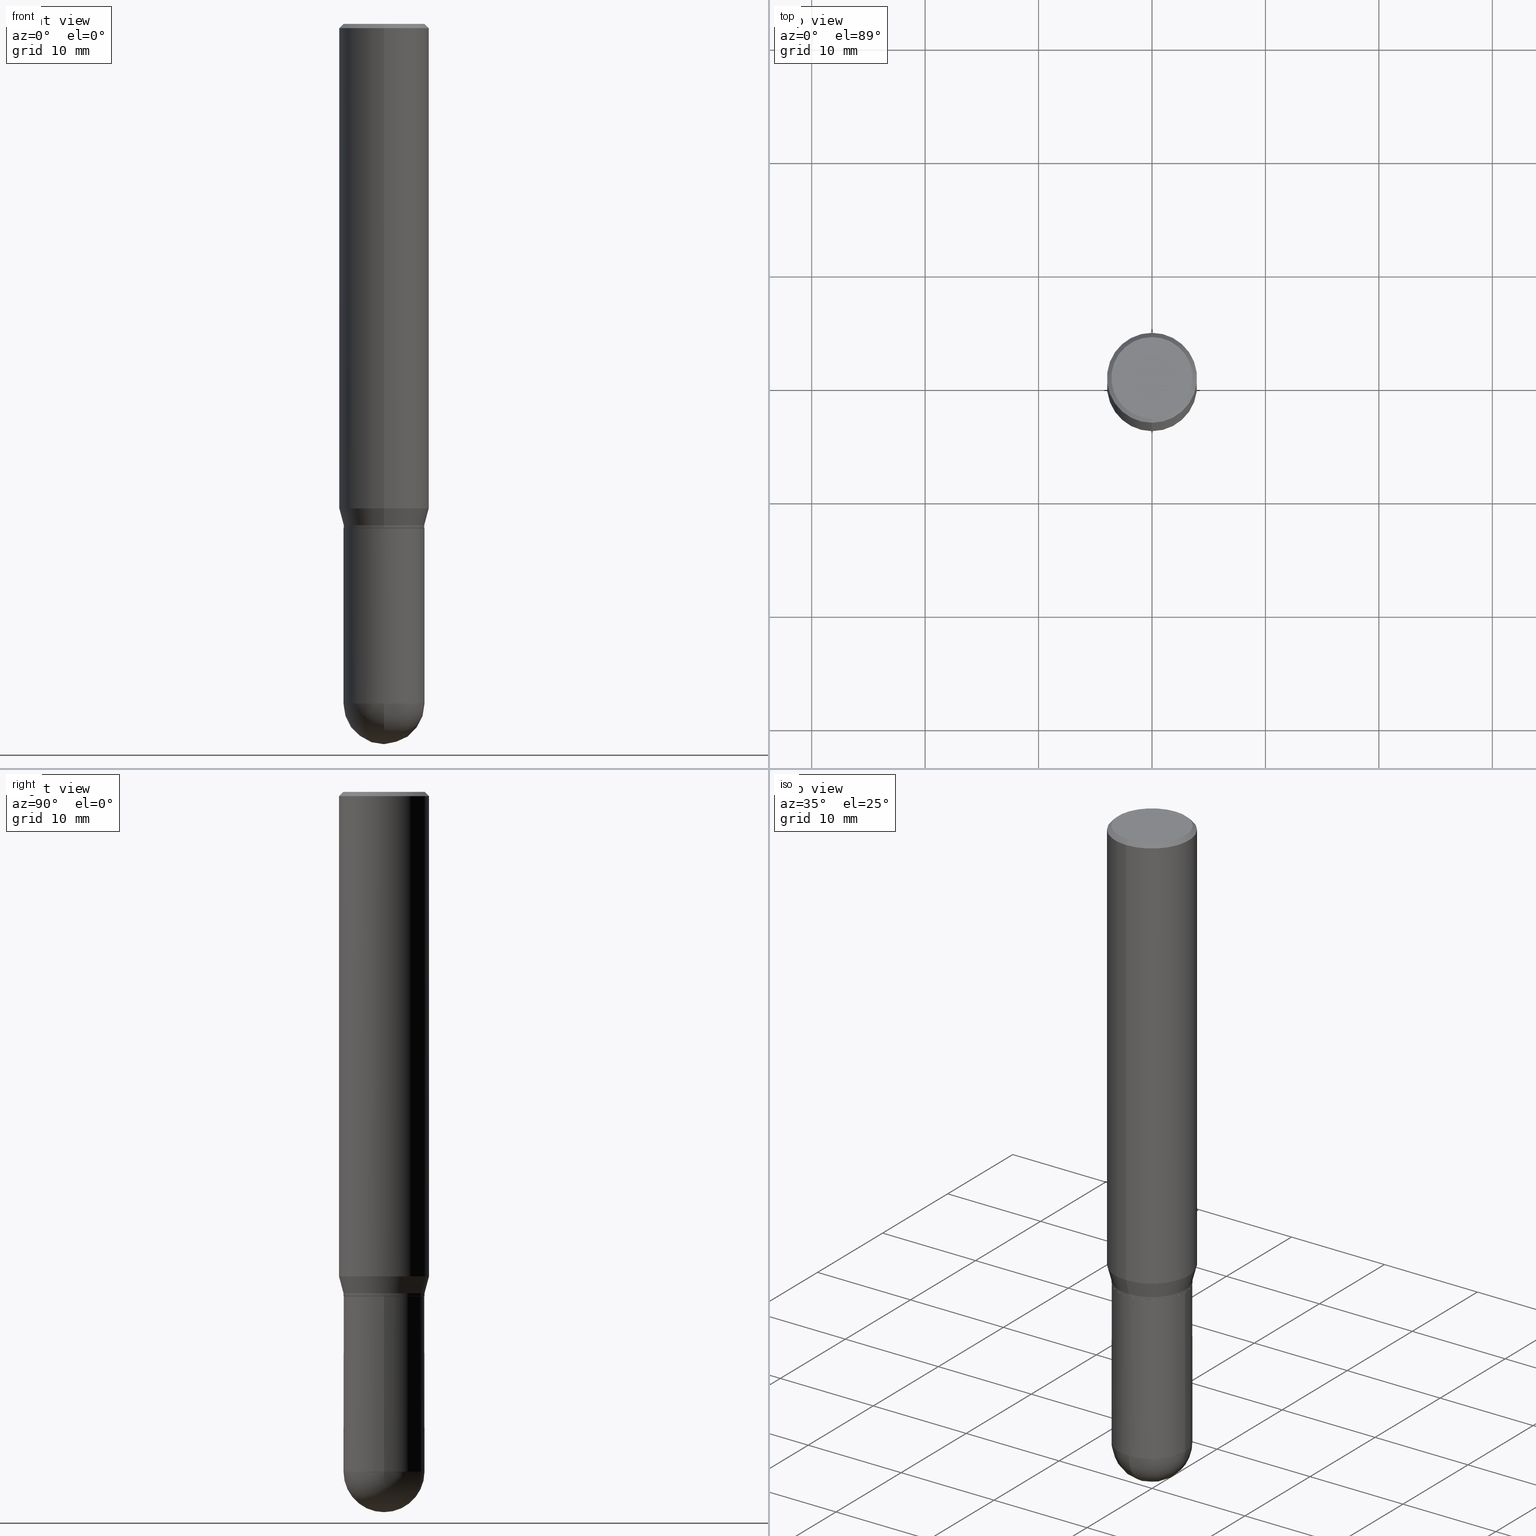
[diagram: canonical four-view strip — front | top / right | iso, engineering-drawing reading convention]
A machine part, canonical four-view strip (front | top / right | iso — engineering-drawing reading convention). The complete STEP part file that produces these views, byte-faithful:
ISO-10303-21;
HEADER;
FILE_DESCRIPTION (( 'STEP AP203' ),
    '1' );
FILE_NAME ('31147.STEP',
    '2024-03-08T15:55:35',
    ( '' ),
    ( '' ),
    'SwSTEP 2.0',
    'SolidWorks 2023',
    '' );
FILE_SCHEMA (( 'CONFIG_CONTROL_DESIGN' ));
ENDSEC;

DATA;
#1 = ORIENTED_EDGE ( 'NONE', *, *, #16, .F. ) ;
#2 = DIRECTION ( 'NONE',  ( -6.982962677686265922E-15, -1.000000000000000000, 3.899854380677035588E-15 ) ) ;
#3 = CARTESIAN_POINT ( 'NONE',  ( 4.254902007838144106E-29, -6.075483581522130008E-15, -1.739999999999999991 ) ) ;
#4 = AXIS2_PLACEMENT_3D ( 'NONE', #144, #352, #77 ) ;
#5 = ORIENTED_EDGE ( 'NONE', *, *, #331, .T. ) ;
#6 = CARTESIAN_POINT ( 'NONE',  ( 4.279355467653306195E-29, -6.110400153829729604E-15, -1.750000000000000222 ) ) ;
#7 = EDGE_CURVE ( 'NONE', #475, #375, #335, .T. ) ;
#8 = CARTESIAN_POINT ( 'NONE',  ( -0.1406000000000000028, -6.174923620442310269E-15, -1.750000000000000222 ) ) ;
#9 = ORIENTED_EDGE ( 'NONE', *, *, #46, .T. ) ;
#10 = ORGANIZATION ( 'UNSPECIFIED', 'UNSPECIFIED', '' ) ;
#11 = FACE_OUTER_BOUND ( 'NONE', #131, .T. ) ;
#12 = FACE_OUTER_BOUND ( 'NONE', #251, .T. ) ;
#13 = VERTEX_POINT ( 'NONE', #300 ) ;
#14 = LINE ( 'NONE', #407, #226 ) ;
#15 = AXIS2_PLACEMENT_3D ( 'NONE', #6, #125, #333 ) ;
#16 = EDGE_CURVE ( 'NONE', #367, #378, #148, .T. ) ;
#17 = ORIENTED_EDGE ( 'NONE', *, *, #200, .F. ) ;
#18 = EDGE_LOOP ( 'NONE', ( #323, #5 ) ) ;
#19 = ORIENTED_EDGE ( 'NONE', *, *, #212, .F. ) ;
#20 = VECTOR ( 'NONE', #425, 39.37007874015748143 ) ;
#21 = VECTOR ( 'NONE', #397, 39.37007874015748143 ) ;
#22 = ORIENTED_EDGE ( 'NONE', *, *, #263, .F. ) ;
#23 = CYLINDRICAL_SURFACE ( 'NONE', #4, 0.1405999999999999195 ) ;
#24 = EDGE_CURVE ( 'NONE', #142, #478, #311, .T. ) ;
#25 = COORDINATED_UNIVERSAL_TIME_OFFSET ( 5, 0, .BEHIND. ) ;
#26 = AXIS2_PLACEMENT_3D ( 'NONE', #449, #99, #304 ) ;
#27 = CC_DESIGN_DATE_AND_TIME_ASSIGNMENT ( #147, #453, ( #241 ) ) ;
#28 = CARTESIAN_POINT ( 'NONE',  ( -1.091087918388437956E-15, -0.1562500000000058842, -1.681593404861546404 ) ) ;
#29 = DIRECTION ( 'NONE',  ( -2.445345981516174728E-29, 3.491657230759845150E-15, 1.000000000000000000 ) ) ;
#30 = CONICAL_SURFACE ( 'NONE', #96, 0.1405999999999999195, 0.2617993877991497964 ) ;
#31 = ORIENTED_EDGE ( 'NONE', *, *, #46, .F. ) ;
#32 = DIRECTION ( 'NONE',  ( -2.445345981516174728E-29, 3.491657230759845150E-15, 1.000000000000000000 ) ) ;
#33 = LINE ( 'NONE', #322, #207 ) ;
#34 = CARTESIAN_POINT ( 'NONE',  ( 4.112077675122285455E-29, -5.871547771282887545E-15, -1.681593404861546848 ) ) ;
#35 = CARTESIAN_POINT ( 'NONE',  ( -9.783130711438031058E-16, -0.1401000000000061085, -1.749999999999999556 ) ) ;
#36 = ADVANCED_FACE ( 'NONE', ( #64 ), #23, .T. ) ;
#37 = VERTEX_POINT ( 'NONE', #360 ) ;
#38 = DIRECTION ( 'NONE',  ( -2.445468806185136597E-29, 3.491481338843145583E-15, 1.000000000000000000 ) ) ;
#39 = PRODUCT ( '31147', '31147', '', ( #488 ) ) ;
#40 = DIRECTION ( 'NONE',  ( -6.982962677686266711E-15, -1.000000000000000000, 3.491657230759845150E-15 ) ) ;
#41 = ORIENTED_EDGE ( 'NONE', *, *, #466, .F. ) ;
#42 = APPROVAL_PERSON_ORGANIZATION ( #499, #123, #143 ) ;
#43 = FACE_OUTER_BOUND ( 'NONE', #256, .T. ) ;
#44 = EDGE_LOOP ( 'NONE', ( #218, #253, #17, #180 ) ) ;
#45 = DIRECTION ( 'NONE',  ( -6.982962677686266711E-15, -1.000000000000000000, 3.885985766236507752E-15 ) ) ;
#46 = EDGE_CURVE ( 'NONE', #391, #67, #458, .T. ) ;
#47 = LINE ( 'NONE', #215, #20 ) ;
#48 = VERTEX_POINT ( 'NONE', #8 ) ;
#49 = CIRCLE ( 'NONE', #118, 0.1406000000000000028 ) ;
#50 = CARTESIAN_POINT ( 'NONE',  ( -9.783130711438031058E-16, -0.1401000000000061085, -1.749999999999999556 ) ) ;
#51 = CONICAL_SURFACE ( 'NONE', #343, 0.1562500000000000000, 0.7853981633974485010 ) ;
#52 = ORIENTED_EDGE ( 'NONE', *, *, #208, .F. ) ;
#53 = PLANE ( 'NONE',  #408 ) ;
#54 = ORIENTED_EDGE ( 'NONE', *, *, #193, .T. ) ;
#55 = EDGE_CURVE ( 'NONE', #282, #95, #357, .T. ) ;
#56 = EDGE_LOOP ( 'NONE', ( #373, #436, #31, #412 ) ) ;
#57 = AXIS2_PLACEMENT_3D ( 'NONE', #505, #393, #240 ) ;
#58 = CC_DESIGN_PERSON_AND_ORGANIZATION_ASSIGNMENT ( #313, #384, ( #363 ) ) ;
#59 = AXIS2_PLACEMENT_3D ( 'NONE', #423, #80, #355 ) ;
#60 = DIRECTION ( 'NONE',  ( 6.982962677686265133E-15, 1.000000000000000000, -3.496765431890256920E-15 ) ) ;
#61 = AXIS2_PLACEMENT_3D ( 'NONE', #463, #68, #239 ) ;
#62 = DIRECTION ( 'NONE',  ( -2.445345981516174448E-29, 3.491657230759844755E-15, 1.000000000000000000 ) ) ;
#63 = APPROVAL_PERSON_ORGANIZATION ( #86, #421, #291 ) ;
#64 = FACE_OUTER_BOUND ( 'NONE', #120, .T. ) ;
#65 = FACE_OUTER_BOUND ( 'NONE', #328, .T. ) ;
#66 = CARTESIAN_POINT ( 'NONE',  ( -9.818045524826451268E-16, -0.1406000000000059702, -1.749499999999999833 ) ) ;
#67 = VERTEX_POINT ( 'NONE', #201 ) ;
#68 = DIRECTION ( 'NONE',  ( -2.445345981516174728E-29, 3.491657230759845150E-15, 1.000000000000000000 ) ) ;
#69 = CC_DESIGN_DATE_AND_TIME_ASSIGNMENT ( #438, #476, ( #222 ) ) ;
#70 = PLANE ( 'NONE',  #298 ) ;
#71 = CLOSED_SHELL ( 'NONE', ( #456, #295, #221, #380, #500, #245, #336, #385, #98, #374, #138, #36 ) ) ;
#72 = CIRCLE ( 'NONE', #149, 0.1401000000000000023 ) ;
#73 = DIRECTION ( 'NONE',  ( -2.445345981516174728E-29, 3.491657230759845150E-15, 1.000000000000000000 ) ) ;
#74 = ORIENTED_EDGE ( 'NONE', *, *, #105, .T. ) ;
#75 = SPHERICAL_SURFACE ( 'NONE', #341, 0.1406000000000000860 ) ;
#76 = EDGE_CURVE ( 'NONE', #391, #136, #47, .T. ) ;
#77 = DIRECTION ( 'NONE',  ( -6.982962677686266711E-15, -1.000000000000000000, 3.491657230759845150E-15 ) ) ;
#78 = ORIENTED_EDGE ( 'NONE', *, *, #208, .T. ) ;
#79 = DIRECTION ( 'NONE',  ( -2.445345981516174728E-29, 3.491657230759845150E-15, 1.000000000000000000 ) ) ;
#80 = DIRECTION ( 'NONE',  ( -2.445468806185136597E-29, 3.491481338843145583E-15, 1.000000000000000000 ) ) ;
#81 = APPLICATION_CONTEXT ( 'configuration controlled 3d designs of mechanical parts and assemblies' ) ;
#82 = CC_DESIGN_PERSON_AND_ORGANIZATION_ASSIGNMENT ( #110, #250, ( #222 ) ) ;
#83 = CARTESIAN_POINT ( 'NONE',  ( 4.112077675122285455E-29, -5.871547771282887545E-15, -1.681593404861546848 ) ) ;
#84 = AXIS2_PLACEMENT_3D ( 'NONE', #230, #351, #389 ) ;
#85 = ORIENTED_EDGE ( 'NONE', *, *, #331, .F. ) ;
#86 = PERSON_AND_ORGANIZATION ( #506, #10 ) ;
#87 = DIRECTION ( 'NONE',  ( -7.105427357601001859E-15, -1.000000000000000000, 0.000000000000000000 ) ) ;
#88 = COORDINATED_UNIVERSAL_TIME_OFFSET ( 5, 0, .BEHIND. ) ;
#89 = ORIENTED_EDGE ( 'NONE', *, *, #435, .F. ) ;
#90 = DIRECTION ( 'NONE',  ( -6.982962677686265133E-15, -1.000000000000000000, 3.496765431890256920E-15 ) ) ;
#91 = EDGE_CURVE ( 'NONE', #67, #391, #155, .T. ) ;
#92 = ORIENTED_EDGE ( 'NONE', *, *, #401, .T. ) ;
#93 = CARTESIAN_POINT ( 'NONE',  ( 9.972467296393428329E-16, 0.1400999999999938961, -1.750000000000000666 ) ) ;
#94 = AXIS2_PLACEMENT_3D ( 'NONE', #3, #467, #197 ) ;
#95 = VERTEX_POINT ( 'NONE', #359 ) ;
#96 = AXIS2_PLACEMENT_3D ( 'NONE', #267, #457, #310 ) ;
#97 = CARTESIAN_POINT ( 'NONE',  ( 0.1406000000000000028, -7.091896895458194566E-15, -1.750000000000000222 ) ) ;
#98 = ADVANCED_FACE ( 'NONE', ( #464 ), #70, .F. ) ;
#99 = DIRECTION ( 'NONE',  ( -2.445345981516174728E-29, 3.491657230759845150E-15, 1.000000000000000000 ) ) ;
#100 = LOCAL_TIME ( 10, 55, 35.00000000000000000, #198 ) ;
#101 = ORIENTED_EDGE ( 'NONE', *, *, #7, .F. ) ;
#102 = PERSON_AND_ORGANIZATION ( #506, #10 ) ;
#103 = AXIS2_PLACEMENT_3D ( 'NONE', #229, #79, #2 ) ;
#104 = PERSON_AND_ORGANIZATION ( #506, #10 ) ;
#105 = EDGE_CURVE ( 'NONE', #491, #204, #275, .T. ) ;
#106 = DIRECTION ( 'NONE',  ( 1.000000000000000000, -6.982962677686268288E-15, 4.876176775795936353E-29 ) ) ;
#107 = VECTOR ( 'NONE', #411, 39.37007874015748143 ) ;
#108 = EDGE_CURVE ( 'NONE', #136, #282, #284, .T. ) ;
#109 = DIRECTION ( 'NONE',  ( 6.982962677686266711E-15, 1.000000000000000000, 0.000000000000000000 ) ) ;
#110 = PERSON_AND_ORGANIZATION ( #506, #10 ) ;
#111 = ORIENTED_EDGE ( 'NONE', *, *, #91, .T. ) ;
#112 = CYLINDRICAL_SURFACE ( 'NONE', #225, 0.1406000000000000028 ) ;
#113 = SPHERICAL_SURFACE ( 'NONE', #286, 0.1406000000000000860 ) ;
#114 = CARTESIAN_POINT ( 'NONE',  ( 4.254902007838144106E-29, -6.075483581522130008E-15, -1.739999999999999991 ) ) ;
#115 = DATE_AND_TIME ( #368, #100 ) ;
#116 = CARTESIAN_POINT ( 'NONE',  ( 0.000000000000000000, 0.000000000000000000, 0.000000000000000000 ) ) ;
#117 = DIRECTION ( 'NONE',  ( 2.445345981516174448E-29, -3.491657230759844755E-15, -1.000000000000000000 ) ) ;
#118 = AXIS2_PLACEMENT_3D ( 'NONE', #156, #192, #190 ) ;
#119 = AXIS2_PLACEMENT_3D ( 'NONE', #83, #477, #90 ) ;
#120 = EDGE_LOOP ( 'NONE', ( #511, #413, #273, #406 ) ) ;
#121 = DIRECTION ( 'NONE',  ( -6.982962677686265922E-15, -1.000000000000000000, 3.899854380677035588E-15 ) ) ;
#122 = CARTESIAN_POINT ( 'NONE',  ( 1.110223024625197561E-15, 0.1562499999999941436, -1.681593404861547514 ) ) ;
#123 = APPROVAL ( #261, 'UNSPECIFIED' ) ;
#124 = ORIENTED_EDGE ( 'NONE', *, *, #445, .F. ) ;
#125 = DIRECTION ( 'NONE',  ( -2.445345981516174728E-29, 3.491657230759845150E-15, 1.000000000000000000 ) ) ;
#126 = CARTESIAN_POINT ( 'NONE',  ( 5.757815463287349061E-29, -8.255019604862529009E-15, -2.359399999999999942 ) ) ;
#127 = ORIENTED_EDGE ( 'NONE', *, *, #178, .F. ) ;
#128 = LINE ( 'NONE', #173, #107 ) ;
#129 = CIRCLE ( 'NONE', #299, 0.1406000000000000305 ) ;
#130 = ADVANCED_FACE ( 'NONE', ( #508 ), #75, .T. ) ;
#131 = EDGE_LOOP ( 'NONE', ( #78, #462 ) ) ;
#132 = DIRECTION ( 'NONE',  ( 2.445345981516174728E-29, -3.491657230759845150E-15, -1.000000000000000000 ) ) ;
#133 = CC_DESIGN_APPROVAL ( #421, ( #222 ) ) ;
#134 = ORIENTED_EDGE ( 'NONE', *, *, #55, .F. ) ;
#135 = DIRECTION ( 'NONE',  ( -2.445468806185136597E-29, 3.491481338843145583E-15, 1.000000000000000000 ) ) ;
#136 = VERTEX_POINT ( 'NONE', #28 ) ;
#137 = DIRECTION ( 'NONE',  ( -2.445345981516174728E-29, 3.491657230759845150E-15, 1.000000000000000000 ) ) ;
#138 = ADVANCED_FACE ( 'NONE', ( #396 ), #165, .T. ) ;
#139 = DIRECTION ( 'NONE',  ( 5.024295867788147587E-15, 0.7071067811865620056, 0.7071067811865330288 ) ) ;
#140 = AXIS2_PLACEMENT_3D ( 'NONE', #157, #38, #271 ) ;
#141 =( NAMED_UNIT ( * ) PLANE_ANGLE_UNIT ( ) SI_UNIT ( $, .RADIAN. ) );
#142 = VERTEX_POINT ( 'NONE', #161 ) ;
#143 = APPROVAL_ROLE ( '' ) ;
#144 = CARTESIAN_POINT ( 'NONE',  ( 0.000000000000000000, 0.000000000000000000, 0.000000000000000000 ) ) ;
#145 = COORDINATED_UNIVERSAL_TIME_OFFSET ( 5, 0, .BEHIND. ) ;
#146 = ADVANCED_FACE ( 'NONE', ( #189 ), #113, .T. ) ;
#147 = DATE_AND_TIME ( #415, #402 ) ;
#148 = CIRCLE ( 'NONE', #26, 0.1412499999999999867 ) ;
#149 = AXIS2_PLACEMENT_3D ( 'NONE', #354, #164, #121 ) ;
#150 = APPROVAL ( #262, 'UNSPECIFIED' ) ;
#151 = DIRECTION ( 'NONE',  ( -2.445468806185136597E-29, 3.491481338843145583E-15, 1.000000000000000000 ) ) ;
#152 = LOCAL_TIME ( 10, 55, 35.00000000000000000, #88 ) ;
#153 = EDGE_CURVE ( 'NONE', #375, #67, #33, .T. ) ;
#154 = CARTESIAN_POINT ( 'NONE',  ( -9.990230864786434913E-16, -0.1406000000000083017, -2.359399999999999498 ) ) ;
#155 = CIRCLE ( 'NONE', #94, 0.1405999999999999195 ) ;
#156 = CARTESIAN_POINT ( 'NONE',  ( 4.279570410823989044E-29, -6.110092342975505460E-15, -1.750000000000000222 ) ) ;
#157 = CARTESIAN_POINT ( 'NONE',  ( 0.000000000000000000, 0.000000000000000000, 0.000000000000000000 ) ) ;
#158 = CARTESIAN_POINT ( 'NONE',  ( 1.091087918388479371E-15, 0.1562499999999999445, -0.01500000000000066558 ) ) ;
#159 = CC_DESIGN_APPROVAL ( #150, ( #363 ) ) ;
#160 = DIRECTION ( 'NONE',  ( -2.445345981516174448E-29, 3.491657230759844755E-15, 1.000000000000000000 ) ) ;
#161 = CARTESIAN_POINT ( 'NONE',  ( 0.1406000000000000583, -8.155751259403701439E-15, -2.359399999999999942 ) ) ;
#162 = VERTEX_POINT ( 'NONE', #122 ) ;
#163 = EDGE_CURVE ( 'NONE', #375, #204, #498, .T. ) ;
#164 = DIRECTION ( 'NONE',  ( -2.445345981516174728E-29, 3.491657230759845150E-15, 1.000000000000000000 ) ) ;
#165 = CONICAL_SURFACE ( 'NONE', #57, 0.1401000000000000023, 0.7853981633974653764 ) ;
#166 = DIRECTION ( 'NONE',  ( -2.445345981516174448E-29, 3.491657230759844755E-15, 1.000000000000000000 ) ) ;
#167 = FACE_OUTER_BOUND ( 'NONE', #364, .T. ) ;
#168 = CARTESIAN_POINT ( 'NONE',  ( -1.091087918388478976E-15, -0.1562500000000000000, 5.455714423062258293E-16 ) ) ;
#169 =( GEOMETRIC_REPRESENTATION_CONTEXT ( 3 ) GLOBAL_UNCERTAINTY_ASSIGNED_CONTEXT ( ( #470 ) ) GLOBAL_UNIT_ASSIGNED_CONTEXT ( ( #340, #141, #301 ) ) REPRESENTATION_CONTEXT ( 'NONE', 'WORKASPACE' ) );
#170 = PRODUCT_DEFINITION_SHAPE ( 'NONE', 'NONE',  #241 ) ;
#171 = ORIENTED_EDGE ( 'NONE', *, *, #236, .F. ) ;
#172 = DIRECTION ( 'NONE',  ( 2.438088387897960049E-29, -3.491481338843145188E-15, -1.000000000000000000 ) ) ;
#173 = CARTESIAN_POINT ( 'NONE',  ( -1.071952812151801215E-15, -0.1562500000000000833, -0.01499999999999957270 ) ) ;
#174 = CIRCLE ( 'NONE', #490, 0.1562500000000000000 ) ;
#175 = ORIENTED_EDGE ( 'NONE', *, *, #163, .F. ) ;
#176 = DIRECTION ( 'NONE',  ( 1.839019923739597160E-15, 0.2588190451025245142, 0.9659258262890673130 ) ) ;
#177 = ORIENTED_EDGE ( 'NONE', *, *, #108, .F. ) ;
#178 = EDGE_CURVE ( 'NONE', #48, #478, #49, .T. ) ;
#179 =( LENGTH_UNIT ( ) NAMED_UNIT ( * ) SI_UNIT ( $, .METRE. ) );
#180 = ORIENTED_EDGE ( 'NONE', *, *, #494, .F. ) ;
#181 = CARTESIAN_POINT ( 'NONE',  ( 0.000000000000000000, 0.000000000000000000, 0.000000000000000000 ) ) ;
#182 = VECTOR ( 'NONE', #454, 39.37007874015748143 ) ;
#183 = ORIENTED_EDGE ( 'NONE', *, *, #366, .T. ) ;
#184 = APPLICATION_PROTOCOL_DEFINITION ( 'international standard', 'config_control_design', 1994, #81 ) ;
#185 = DATE_AND_TIME ( #345, #303 ) ;
#186 = CIRCLE ( 'NONE', #255, 0.1405999999999999195 ) ;
#187 = CARTESIAN_POINT ( 'NONE',  ( 5.769839101313211634E-29, -8.237801070866517629E-15, -2.359399999999999942 ) ) ;
#188 = LOCAL_TIME ( 10, 55, 35.00000000000000000, #145 ) ;
#189 = FACE_OUTER_BOUND ( 'NONE', #44, .T. ) ;
#190 = DIRECTION ( 'NONE',  ( 1.000000000000000000, -6.982962677686265133E-15, 0.000000000000000000 ) ) ;
#191 = DIRECTION ( 'NONE',  ( -6.982962677686265133E-15, -1.000000000000000000, 3.491657230759845150E-15 ) ) ;
#192 = DIRECTION ( 'NONE',  ( -2.445468806185136597E-29, 3.491481338843145583E-15, 1.000000000000000000 ) ) ;
#193 = EDGE_CURVE ( 'NONE', #37, #296, #481, .T. ) ;
#194 = CARTESIAN_POINT ( 'NONE',  ( 9.818045524827470871E-16, 0.1405999999999918426, -2.359400000000000386 ) ) ;
#195 = CARTESIAN_POINT ( 'NONE',  ( 5.757815463287349061E-29, -8.255019604862529009E-15, -2.359399999999999942 ) ) ;
#196 = ORIENTED_EDGE ( 'NONE', *, *, #366, .F. ) ;
#197 = DIRECTION ( 'NONE',  ( -6.982962677686266711E-15, -1.000000000000000000, 3.885985766236507752E-15 ) ) ;
#198 = COORDINATED_UNIVERSAL_TIME_OFFSET ( 5, 0, .BEHIND. ) ;
#199 = CARTESIAN_POINT ( 'NONE',  ( 3.668018972274291047E-31, -5.237485846139809263E-17, -0.01500000000000011914 ) ) ;
#200 = EDGE_CURVE ( 'NONE', #13, #276, #447, .T. ) ;
#201 = CARTESIAN_POINT ( 'NONE',  ( 1.054623055551970126E-15, 0.1405999999999938410, -1.740000000000000657 ) ) ;
#202 = ORIENTED_EDGE ( 'NONE', *, *, #76, .F. ) ;
#203 = DIRECTION ( 'NONE',  ( -6.982962677686265133E-15, -1.000000000000000000, 3.491657230759845150E-15 ) ) ;
#204 = VERTEX_POINT ( 'NONE', #66 ) ;
#205 = PLANE ( 'NONE',  #426 ) ;
#206 = DIRECTION ( 'NONE',  ( 2.445345981516174728E-29, -3.491657230759845150E-15, -1.000000000000000000 ) ) ;
#207 = VECTOR ( 'NONE', #62, 39.37007874015748143 ) ;
#208 = EDGE_CURVE ( 'NONE', #478, #48, #419, .T. ) ;
#209 = AXIS2_PLACEMENT_3D ( 'NONE', #486, #297, #203 ) ;
#210 = EDGE_LOOP ( 'NONE', ( #101, #482, #74, #175 ) ) ;
#211 = AXIS2_PLACEMENT_3D ( 'NONE', #181, #217, #308 ) ;
#212 = EDGE_CURVE ( 'NONE', #367, #95, #349, .T. ) ;
#213 = ORIENTED_EDGE ( 'NONE', *, *, #55, .T. ) ;
#214 = DIRECTION ( 'NONE',  ( -1.000000000000000000, 6.982962677686265922E-15, -4.876176775795935793E-29 ) ) ;
#215 = CARTESIAN_POINT ( 'NONE',  ( -9.818045524826459157E-16, -0.1406000000000059980, -1.739999999999999547 ) ) ;
#216 = ORIENTED_EDGE ( 'NONE', *, *, #445, .T. ) ;
#217 = DIRECTION ( 'NONE',  ( 0.000000000000000000, 0.000000000000000000, 1.000000000000000000 ) ) ;
#218 = ORIENTED_EDGE ( 'NONE', *, *, #193, .F. ) ;
#219 = AXIS2_PLACEMENT_3D ( 'NONE', #187, #151, #302 ) ;
#220 = PERSON_AND_ORGANIZATION_ROLE ( 'creator' ) ;
#221 = ADVANCED_FACE ( 'NONE', ( #272 ), #440, .T. ) ;
#222 = SECURITY_CLASSIFICATION ( '', '', #503 ) ;
#223 = DIRECTION ( 'NONE',  ( -2.445345981516174728E-29, 3.491657230759845150E-15, 1.000000000000000000 ) ) ;
#224 = EDGE_CURVE ( 'NONE', #204, #375, #186, .T. ) ;
#225 = AXIS2_PLACEMENT_3D ( 'NONE', #116, #428, #106 ) ;
#226 = VECTOR ( 'NONE', #176, 39.37007874015748143 ) ;
#227 = CARTESIAN_POINT ( 'NONE',  ( -0.1406000000000000028, 9.990230864787008809E-16, -6.916022736898399140E-30 ) ) ;
#228 = DIRECTION ( 'NONE',  ( -2.445345981516174728E-29, 3.491657230759845150E-15, 1.000000000000000000 ) ) ;
#229 = CARTESIAN_POINT ( 'NONE',  ( 4.279355467653306195E-29, -6.110400153829729604E-15, -1.750000000000000222 ) ) ;
#230 = CARTESIAN_POINT ( 'NONE',  ( 4.279570410823989044E-29, -6.110092342975505460E-15, -1.750000000000000222 ) ) ;
#231 = ORIENTED_EDGE ( 'NONE', *, *, #7, .T. ) ;
#232 = FACE_OUTER_BOUND ( 'NONE', #450, .T. ) ;
#233 = CLOSED_SHELL ( 'NONE', ( #321, #146, #416, #130, #270 ) ) ;
#234 = CIRCLE ( 'NONE', #15, 0.1401000000000000023 ) ;
#235 = CARTESIAN_POINT ( 'NONE',  ( 9.863434782231850151E-16, 0.1412499999999999867, -5.532464397475664005E-16 ) ) ;
#236 = EDGE_CURVE ( 'NONE', #142, #296, #266, .T. ) ;
#237 = DIRECTION ( 'NONE',  ( -6.982962677686266711E-15, -1.000000000000000000, 3.885985766236507752E-15 ) ) ;
#238 = ORIENTED_EDGE ( 'NONE', *, *, #280, .T. ) ;
#239 = DIRECTION ( 'NONE',  ( -6.982962677686265922E-15, -1.000000000000000000, 3.491657230759845544E-15 ) ) ;
#240 = DIRECTION ( 'NONE',  ( -6.982962677686265922E-15, -1.000000000000000000, 3.899854380677035588E-15 ) ) ;
#241 = PRODUCT_DEFINITION ( 'UNKNOWN', '', #363, #281 ) ;
#242 = ORIENTED_EDGE ( 'NONE', *, *, #420, .F. ) ;
#243 = CARTESIAN_POINT ( 'NONE',  ( 1.110223024625156343E-15, 0.1562500000000000000, -5.455714423062258293E-16 ) ) ;
#244 = DIRECTION ( 'NONE',  ( -6.982962677686265133E-15, -1.000000000000000000, 3.885985766236507752E-15 ) ) ;
#245 = ADVANCED_FACE ( 'NONE', ( #309 ), #30, .T. ) ;
#246 = CARTESIAN_POINT ( 'NONE',  ( 9.818045524827319015E-16, 0.1405999999999938965, -1.750000000000000666 ) ) ;
#247 = AXIS2_PLACEMENT_3D ( 'NONE', #434, #289, #405 ) ;
#248 = ORIENTED_EDGE ( 'NONE', *, *, #401, .F. ) ;
#249 = DIRECTION ( 'NONE',  ( -2.445345981516174728E-29, 3.491657230759845150E-15, 1.000000000000000000 ) ) ;
#250 = PERSON_AND_ORGANIZATION_ROLE ( 'classification_officer' ) ;
#251 = EDGE_LOOP ( 'NONE', ( #9, #356, #22, #202 ) ) ;
#252 = DIRECTION ( 'NONE',  ( -6.982962677686265922E-15, -1.000000000000000000, 3.491657230759844755E-15 ) ) ;
#253 = ORIENTED_EDGE ( 'NONE', *, *, #474, .T. ) ;
#254 = DIRECTION ( 'NONE',  ( 1.000000000000000000, -6.982962677686270655E-15, 0.000000000000000000 ) ) ;
#255 = AXIS2_PLACEMENT_3D ( 'NONE', #501, #223, #417 ) ;
#256 = EDGE_LOOP ( 'NONE', ( #41, #371 ) ) ;
#257 = DIRECTION ( 'NONE',  ( -2.445345981516174728E-29, 3.491657230759845150E-15, 1.000000000000000000 ) ) ;
#258 = ORIENTED_EDGE ( 'NONE', *, *, #24, .T. ) ;
#259 = EDGE_LOOP ( 'NONE', ( #394, #111, #338, #248 ) ) ;
#260 = CIRCLE ( 'NONE', #61, 0.1412499999999999867 ) ;
#261 = APPROVAL_STATUS ( 'not_yet_approved' ) ;
#262 = APPROVAL_STATUS ( 'not_yet_approved' ) ;
#263 = EDGE_CURVE ( 'NONE', #136, #162, #414, .T. ) ;
#264 = PERSON_AND_ORGANIZATION ( #506, #10 ) ;
#265 = VECTOR ( 'NONE', #139, 39.37007874015748143 ) ;
#266 = CIRCLE ( 'NONE', #219, 0.1406000000000000305 ) ;
#267 = CARTESIAN_POINT ( 'NONE',  ( 4.254902007838144106E-29, -6.075483581522130008E-15, -1.739999999999999991 ) ) ;
#268 = CC_DESIGN_APPROVAL ( #123, ( #241 ) ) ;
#269 = EDGE_LOOP ( 'NONE', ( #424, #469, #317, #258, #127 ) ) ;
#270 = ADVANCED_FACE ( 'NONE', ( #507 ), #112, .T. ) ;
#271 = DIRECTION ( 'NONE',  ( 1.000000000000000000, -6.982962677686268288E-15, 4.876176775795936353E-29 ) ) ;
#272 = FACE_OUTER_BOUND ( 'NONE', #293, .T. ) ;
#273 = ORIENTED_EDGE ( 'NONE', *, *, #344, .T. ) ;
#274 = AXIS2_PLACEMENT_3D ( 'NONE', #279, #228, #244 ) ;
#275 = LINE ( 'NONE', #35, #382 ) ;
#276 = VERTEX_POINT ( 'NONE', #154 ) ;
#277 = LINE ( 'NONE', #227, #307 ) ;
#278 = AXIS2_PLACEMENT_3D ( 'NONE', #329, #257, #45 ) ;
#279 = CARTESIAN_POINT ( 'NONE',  ( 4.278132794662548511E-29, -6.108654325214350452E-15, -1.749500000000000277 ) ) ;
#280 = EDGE_CURVE ( 'NONE', #13, #48, #277, .T. ) ;
#281 = DESIGN_CONTEXT ( 'detailed design', #81, 'design' ) ;
#282 = VERTEX_POINT ( 'NONE', #422 ) ;
#283 = DIRECTION ( 'NONE',  ( -2.445345981516174448E-29, 3.491657230759844755E-15, 1.000000000000000000 ) ) ;
#284 = LINE ( 'NONE', #168, #437 ) ;
#285 = CYLINDRICAL_SURFACE ( 'NONE', #452, 0.1405999999999999195 ) ;
#286 = AXIS2_PLACEMENT_3D ( 'NONE', #195, #386, #512 ) ;
#287 = AXIS2_PLACEMENT_3D ( 'NONE', #34, #29, #504 ) ;
#288 = CALENDAR_DATE ( 2024, 8, 3 ) ;
#289 = DIRECTION ( 'NONE',  ( -2.445345981516174728E-29, 3.491657230759845150E-15, 1.000000000000000000 ) ) ;
#290 = ORIENTED_EDGE ( 'NONE', *, *, #212, .T. ) ;
#291 = APPROVAL_ROLE ( '' ) ;
#292 = CARTESIAN_POINT ( 'NONE',  ( -9.818045524826459157E-16, -0.1406000000000059980, -1.739999999999999547 ) ) ;
#293 = EDGE_LOOP ( 'NONE', ( #85, #315, #213, #19 ) ) ;
#294 = CARTESIAN_POINT ( 'NONE',  ( 5.769839101313211634E-29, -8.237801070866517629E-15, -2.359399999999999942 ) ) ;
#295 = ADVANCED_FACE ( 'NONE', ( #65 ), #383, .T. ) ;
#296 = VERTEX_POINT ( 'NONE', #194 ) ;
#297 = DIRECTION ( 'NONE',  ( -2.445345981516174728E-29, 3.491657230759845150E-15, 1.000000000000000000 ) ) ;
#298 = AXIS2_PLACEMENT_3D ( 'NONE', #235, #117, #316 ) ;
#299 = AXIS2_PLACEMENT_3D ( 'NONE', #442, #135, #372 ) ;
#300 = CARTESIAN_POINT ( 'NONE',  ( -0.1406000000000000583, -6.174923620442310269E-15, -2.359399999999999942 ) ) ;
#301 =( NAMED_UNIT ( * ) SI_UNIT ( $, .STERADIAN. ) SOLID_ANGLE_UNIT ( ) );
#302 = DIRECTION ( 'NONE',  ( 1.000000000000000000, -6.982962677686270655E-15, 0.000000000000000000 ) ) ;
#303 = LOCAL_TIME ( 10, 55, 35.00000000000000000, #25 ) ;
#304 = DIRECTION ( 'NONE',  ( -6.982962677686265922E-15, -1.000000000000000000, 3.491657230759845544E-15 ) ) ;
#305 = DATE_AND_TIME ( #497, #188 ) ;
#306 = PERSON_AND_ORGANIZATION_ROLE ( 'design_owner' ) ;
#307 = VECTOR ( 'NONE', #460, 39.37007874015748143 ) ;
#308 = DIRECTION ( 'NONE',  ( 1.000000000000000000, 0.000000000000000000, 0.000000000000000000 ) ) ;
#309 = FACE_OUTER_BOUND ( 'NONE', #259, .T. ) ;
#310 = DIRECTION ( 'NONE',  ( -6.982962677686266711E-15, -1.000000000000000000, 3.885985766236507752E-15 ) ) ;
#311 = LINE ( 'NONE', #459, #182 ) ;
#312 = DIRECTION ( 'NONE',  ( 1.000000000000000000, -6.982962677686265922E-15, 4.883557194083112340E-29 ) ) ;
#313 = PERSON_AND_ORGANIZATION ( #506, #10 ) ;
#314 = DIRECTION ( 'NONE',  ( 4.937700262164548831E-15, 0.7071067811865452413, -0.7071067811865497932 ) ) ;
#315 = ORIENTED_EDGE ( 'NONE', *, *, #420, .T. ) ;
#316 = DIRECTION ( 'NONE',  ( 6.982962677686265922E-15, 1.000000000000000000, -3.491657230759844755E-15 ) ) ;
#317 = ORIENTED_EDGE ( 'NONE', *, *, #435, .T. ) ;
#318 = AXIS2_PLACEMENT_3D ( 'NONE', #114, #73, #237 ) ;
#319 = CARTESIAN_POINT ( 'NONE',  ( 0.000000000000000000, 0.000000000000000000, 0.000000000000000000 ) ) ;
#320 = AXIS2_PLACEMENT_3D ( 'NONE', #429, #206, #60 ) ;
#321 = ADVANCED_FACE ( 'NONE', ( #387 ), #348, .T. ) ;
#322 = CARTESIAN_POINT ( 'NONE',  ( 9.990230864787002893E-16, 0.1405999999999999195, -4.909270066448339733E-16 ) ) ;
#323 = ORIENTED_EDGE ( 'NONE', *, *, #16, .T. ) ;
#324 = DIRECTION ( 'NONE',  ( 6.982962677686265133E-15, 1.000000000000000000, -3.496765431890256920E-15 ) ) ;
#325 = DIRECTION ( 'NONE',  ( 6.982962677686265922E-15, 1.000000000000000000, -3.885985766236502230E-15 ) ) ;
#326 = ORIENTED_EDGE ( 'NONE', *, *, #466, .T. ) ;
#327 = CARTESIAN_POINT ( 'NONE',  ( 3.668018972274291047E-31, -5.237485846139809263E-17, -0.01500000000000011914 ) ) ;
#328 = EDGE_LOOP ( 'NONE', ( #326, #231, #465, #403 ) ) ;
#329 = CARTESIAN_POINT ( 'NONE',  ( 4.254902007838144106E-29, -6.075483581522130008E-15, -1.739999999999999991 ) ) ;
#330 = VECTOR ( 'NONE', #314, 39.37007874015748143 ) ;
#331 = EDGE_CURVE ( 'NONE', #378, #367, #260, .T. ) ;
#332 = EDGE_LOOP ( 'NONE', ( #446, #238, #52, #441, #485 ) ) ;
#333 = DIRECTION ( 'NONE',  ( -6.982962677686265922E-15, -1.000000000000000000, 3.899854380677035588E-15 ) ) ;
#334 = ORIENTED_EDGE ( 'NONE', *, *, #108, .T. ) ;
#335 = LINE ( 'NONE', #487, #265 ) ;
#336 = ADVANCED_FACE ( 'NONE', ( #232 ), #392, .T. ) ;
#337 = AXIS2_PLACEMENT_3D ( 'NONE', #319, #32, #191 ) ;
#338 = ORIENTED_EDGE ( 'NONE', *, *, #76, .T. ) ;
#339 = CC_DESIGN_PERSON_AND_ORGANIZATION_ASSIGNMENT ( #264, #418, ( #363 ) ) ;
#340 =( CONVERSION_BASED_UNIT ( 'INCH', #492 ) LENGTH_UNIT ( ) NAMED_UNIT ( #493 ) );
#341 = AXIS2_PLACEMENT_3D ( 'NONE', #126, #461, #325 ) ;
#342 = ADVANCED_BREP_SHAPE_REPRESENTATION ( '31147', ( #489, #484, #211 ), #169 ) ;
#343 = AXIS2_PLACEMENT_3D ( 'NONE', #199, #132, #324 ) ;
#344 = EDGE_CURVE ( 'NONE', #204, #391, #395, .T. ) ;
#345 = CALENDAR_DATE ( 2024, 8, 3 ) ;
#346 = EDGE_CURVE ( 'NONE', #475, #491, #72, .T. ) ;
#347 = VECTOR ( 'NONE', #160, 39.37007874015748143 ) ;
#348 = CYLINDRICAL_SURFACE ( 'NONE', #140, 0.1406000000000000028 ) ;
#349 = LINE ( 'NONE', #158, #330 ) ;
#350 = CARTESIAN_POINT ( 'NONE',  ( -9.818045524826885142E-16, -0.1405999999999999195, 4.909270066448339733E-16 ) ) ;
#351 = DIRECTION ( 'NONE',  ( -2.445468806185136597E-29, 3.491481338843145583E-15, 1.000000000000000000 ) ) ;
#352 = DIRECTION ( 'NONE',  ( -2.445345981516174728E-29, 3.491657230759845150E-15, 1.000000000000000000 ) ) ;
#353 = APPROVAL_DATE_TIME ( #115, #421 ) ;
#354 = CARTESIAN_POINT ( 'NONE',  ( 4.279355467653306195E-29, -6.110400153829729604E-15, -1.750000000000000222 ) ) ;
#355 = DIRECTION ( 'NONE',  ( 1.000000000000000000, -6.982962677686270655E-15, 0.000000000000000000 ) ) ;
#356 = ORIENTED_EDGE ( 'NONE', *, *, #510, .T. ) ;
#357 = CIRCLE ( 'NONE', #247, 0.1562500000000000000 ) ;
#358 = AXIS2_PLACEMENT_3D ( 'NONE', #404, #439, #87 ) ;
#359 = CARTESIAN_POINT ( 'NONE',  ( 1.110223024625197561E-15, 0.1562499999999999445, -0.01500000000000066558 ) ) ;
#360 = CARTESIAN_POINT ( 'NONE',  ( 6.107660196449910766E-29, -8.737312614105869844E-15, -2.500000000000000000 ) ) ;
#361 = ORIENTED_EDGE ( 'NONE', *, *, #474, .F. ) ;
#362 = CARTESIAN_POINT ( 'NONE',  ( 1.038715698305832292E-15, 0.1412499999999999867, -6.132962956503047871E-16 ) ) ;
#363 = PRODUCT_DEFINITION_FORMATION_WITH_SPECIFIED_SOURCE ( 'ANY', '', #39, .NOT_KNOWN. ) ;
#364 = EDGE_LOOP ( 'NONE', ( #242, #1, #290, #216 ) ) ;
#365 = DIRECTION ( 'NONE',  ( -6.982962677686265133E-15, -1.000000000000000000, 3.496765431890256920E-15 ) ) ;
#366 = EDGE_CURVE ( 'NONE', #162, #95, #430, .T. ) ;
#367 = VERTEX_POINT ( 'NONE', #362 ) ;
#368 = CALENDAR_DATE ( 2024, 8, 3 ) ;
#369 = DIRECTION ( 'NONE',  ( -2.445468806185136597E-29, 3.491481338843145583E-15, 1.000000000000000000 ) ) ;
#370 = APPLICATION_CONTEXT ( 'configuration controlled 3d designs of mechanical parts and assemblies' ) ;
#371 = ORIENTED_EDGE ( 'NONE', *, *, #346, .F. ) ;
#372 = DIRECTION ( 'NONE',  ( 1.000000000000000000, -6.982962677686270655E-15, 0.000000000000000000 ) ) ;
#373 = ORIENTED_EDGE ( 'NONE', *, *, #224, .T. ) ;
#374 = ADVANCED_FACE ( 'NONE', ( #43 ), #205, .F. ) ;
#375 = VERTEX_POINT ( 'NONE', #472 ) ;
#376 = PERSON_AND_ORGANIZATION ( #506, #10 ) ;
#377 = CIRCLE ( 'NONE', #409, 0.1406000000000000305 ) ;
#378 = VERTEX_POINT ( 'NONE', #480 ) ;
#379 = COORDINATED_UNIVERSAL_TIME_OFFSET ( 5, 0, .BEHIND. ) ;
#380 = ADVANCED_FACE ( 'NONE', ( #433 ), #483, .T. ) ;
#381 = APPROVAL_ROLE ( '' ) ;
#382 = VECTOR ( 'NONE', #431, 39.37007874015748143 ) ;
#383 = CONICAL_SURFACE ( 'NONE', #103, 0.1401000000000000023, 0.7853981633974653764 ) ;
#384 = PERSON_AND_ORGANIZATION_ROLE ( 'design_supplier' ) ;
#385 = ADVANCED_FACE ( 'NONE', ( #167 ), #51, .T. ) ;
#386 = DIRECTION ( 'NONE',  ( -1.000000000000000000, 6.982962677686265922E-15, -4.883557194083112340E-29 ) ) ;
#387 = FACE_OUTER_BOUND ( 'NONE', #332, .T. ) ;
#388 = CC_DESIGN_PERSON_AND_ORGANIZATION_ASSIGNMENT ( #376, #306, ( #39 ) ) ;
#389 = DIRECTION ( 'NONE',  ( 1.000000000000000000, -6.982962677686265133E-15, 0.000000000000000000 ) ) ;
#390 = CIRCLE ( 'NONE', #119, 0.1562500000000000000 ) ;
#391 = VERTEX_POINT ( 'NONE', #292 ) ;
#392 = CYLINDRICAL_SURFACE ( 'NONE', #337, 0.1562500000000000000 ) ;
#393 = DIRECTION ( 'NONE',  ( -2.445345981516174728E-29, 3.491657230759845150E-15, 1.000000000000000000 ) ) ;
#394 = ORIENTED_EDGE ( 'NONE', *, *, #510, .F. ) ;
#395 = LINE ( 'NONE', #350, #347 ) ;
#396 = FACE_OUTER_BOUND ( 'NONE', #210, .T. ) ;
#397 = DIRECTION ( 'NONE',  ( -2.445345981516174448E-29, 3.491657230759844755E-15, 1.000000000000000000 ) ) ;
#398 = FACE_OUTER_BOUND ( 'NONE', #56, .T. ) ;
#399 = CIRCLE ( 'NONE', #358, 0.1406000000000000860 ) ;
#400 = CARTESIAN_POINT ( 'NONE',  ( 4.279355467653306195E-29, -6.110400153829729604E-15, -1.750000000000000222 ) ) ;
#401 = EDGE_CURVE ( 'NONE', #162, #136, #390, .T. ) ;
#402 = LOCAL_TIME ( 10, 55, 35.00000000000000000, #379 ) ;
#403 = ORIENTED_EDGE ( 'NONE', *, *, #105, .F. ) ;
#404 = CARTESIAN_POINT ( 'NONE',  ( 5.757815463287349061E-29, -8.255019604862529009E-15, -2.359399999999999942 ) ) ;
#405 = DIRECTION ( 'NONE',  ( -6.982962677686265133E-15, -1.000000000000000000, 3.496765431890256920E-15 ) ) ;
#406 = ORIENTED_EDGE ( 'NONE', *, *, #91, .F. ) ;
#407 = CARTESIAN_POINT ( 'NONE',  ( 9.990230864787428877E-16, 0.1405999999999938410, -1.740000000000000657 ) ) ;
#408 = AXIS2_PLACEMENT_3D ( 'NONE', #246, #172, #214 ) ;
#409 = AXIS2_PLACEMENT_3D ( 'NONE', #294, #369, #254 ) ;
#410 = EDGE_LOOP ( 'NONE', ( #443, #183, #134, #177 ) ) ;
#411 = DIRECTION ( 'NONE',  ( -4.851104656540965064E-15, -0.7071067811865501263, -0.7071067811865449082 ) ) ;
#412 = ORIENTED_EDGE ( 'NONE', *, *, #344, .F. ) ;
#413 = ORIENTED_EDGE ( 'NONE', *, *, #163, .T. ) ;
#414 = CIRCLE ( 'NONE', #287, 0.1562500000000000000 ) ;
#415 = CALENDAR_DATE ( 2024, 8, 3 ) ;
#416 = ADVANCED_FACE ( 'NONE', ( #11 ), #53, .F. ) ;
#417 = DIRECTION ( 'NONE',  ( -6.982962677686265133E-15, -1.000000000000000000, 3.885985766236507752E-15 ) ) ;
#418 = PERSON_AND_ORGANIZATION_ROLE ( 'creator' ) ;
#419 = CIRCLE ( 'NONE', #84, 0.1406000000000000028 ) ;
#420 = EDGE_CURVE ( 'NONE', #378, #282, #128, .T. ) ;
#421 = APPROVAL ( #432, 'UNSPECIFIED' ) ;
#422 = CARTESIAN_POINT ( 'NONE',  ( -1.091087918388478779E-15, -0.1562500000000000833, -0.01499999999999957270 ) ) ;
#423 = CARTESIAN_POINT ( 'NONE',  ( 5.769839101313211634E-29, -8.237801070866517629E-15, -2.359399999999999942 ) ) ;
#424 = ORIENTED_EDGE ( 'NONE', *, *, #280, .F. ) ;
#425 = DIRECTION ( 'NONE',  ( -1.807323732225326984E-15, -0.2588190451025177419, 0.9659258262890690894 ) ) ;
#426 = AXIS2_PLACEMENT_3D ( 'NONE', #400, #283, #252 ) ;
#427 = EDGE_LOOP ( 'NONE', ( #361, #54, #171, #89 ) ) ;
#428 = DIRECTION ( 'NONE',  ( -2.445468806185136597E-29, 3.491481338843145583E-15, 1.000000000000000000 ) ) ;
#429 = CARTESIAN_POINT ( 'NONE',  ( 3.668018972274291047E-31, -5.237485846139809263E-17, -0.01500000000000011914 ) ) ;
#430 = LINE ( 'NONE', #243, #21 ) ;
#431 = DIRECTION ( 'NONE',  ( -4.937700262164631661E-15, -0.7071067811865571207, 0.7071067811865379138 ) ) ;
#432 = APPROVAL_STATUS ( 'not_yet_approved' ) ;
#433 = FACE_OUTER_BOUND ( 'NONE', #410, .T. ) ;
#434 = CARTESIAN_POINT ( 'NONE',  ( 3.668018972274291047E-31, -5.237485846139809263E-17, -0.01500000000000011914 ) ) ;
#435 = EDGE_CURVE ( 'NONE', #276, #142, #129, .T. ) ;
#436 = ORIENTED_EDGE ( 'NONE', *, *, #153, .T. ) ;
#437 = VECTOR ( 'NONE', #166, 39.37007874015748143 ) ;
#438 = DATE_AND_TIME ( #288, #152 ) ;
#439 = DIRECTION ( 'NONE',  ( -1.000000000000000000, 7.105427357601001070E-15, -4.926315508542082329E-29 ) ) ;
#440 = CONICAL_SURFACE ( 'NONE', #320, 0.1562500000000000000, 0.7853981633974485010 ) ;
#441 = ORIENTED_EDGE ( 'NONE', *, *, #24, .F. ) ;
#442 = CARTESIAN_POINT ( 'NONE',  ( 5.769839101313211634E-29, -8.237801070866517629E-15, -2.359399999999999942 ) ) ;
#443 = ORIENTED_EDGE ( 'NONE', *, *, #263, .T. ) ;
#444 = CARTESIAN_POINT ( 'NONE',  ( 0.000000000000000000, 0.000000000000000000, 0.000000000000000000 ) ) ;
#445 = EDGE_CURVE ( 'NONE', #95, #282, #174, .T. ) ;
#446 = ORIENTED_EDGE ( 'NONE', *, *, #494, .T. ) ;
#447 = CIRCLE ( 'NONE', #59, 0.1406000000000000305 ) ;
#448 = PRODUCT_RELATED_PRODUCT_CATEGORY ( 'detail', '', ( #39 ) ) ;
#449 = CARTESIAN_POINT ( 'NONE',  ( 2.936853476447729499E-45, -4.193470271377658655E-31, -1.200997118054766005E-16 ) ) ;
#450 = EDGE_LOOP ( 'NONE', ( #196, #92, #334, #124 ) ) ;
#451 = APPROVAL_DATE_TIME ( #305, #123 ) ;
#452 = AXIS2_PLACEMENT_3D ( 'NONE', #444, #137, #40 ) ;
#453 = DATE_TIME_ROLE ( 'creation_date' ) ;
#454 = DIRECTION ( 'NONE',  ( -2.445468806185136877E-29, 3.491481338843145188E-15, 1.000000000000000000 ) ) ;
#455 = APPROVAL_DATE_TIME ( #185, #150 ) ;
#456 = ADVANCED_FACE ( 'NONE', ( #398 ), #285, .T. ) ;
#457 = DIRECTION ( 'NONE',  ( -2.445345981516174728E-29, 3.491657230759845150E-15, 1.000000000000000000 ) ) ;
#458 = CIRCLE ( 'NONE', #318, 0.1405999999999999195 ) ;
#459 = CARTESIAN_POINT ( 'NONE',  ( 0.1406000000000000028, -9.818045524826893030E-16, 6.855904546769086274E-30 ) ) ;
#460 = DIRECTION ( 'NONE',  ( -2.445468806185136877E-29, 3.491481338843145188E-15, 1.000000000000000000 ) ) ;
#461 = DIRECTION ( 'NONE',  ( -1.000000000000000000, 6.982962677686265922E-15, -4.883557194083112340E-29 ) ) ;
#462 = ORIENTED_EDGE ( 'NONE', *, *, #178, .T. ) ;
#463 = CARTESIAN_POINT ( 'NONE',  ( 2.936853476447729499E-45, -4.193470271377658655E-31, -1.200997118054766005E-16 ) ) ;
#464 = FACE_OUTER_BOUND ( 'NONE', #18, .T. ) ;
#465 = ORIENTED_EDGE ( 'NONE', *, *, #224, .F. ) ;
#466 = EDGE_CURVE ( 'NONE', #491, #475, #234, .T. ) ;
#467 = DIRECTION ( 'NONE',  ( -2.445345981516174728E-29, 3.491657230759845150E-15, 1.000000000000000000 ) ) ;
#468 = AXIS2_PLACEMENT_3D ( 'NONE', #473, #312, #109 ) ;
#469 = ORIENTED_EDGE ( 'NONE', *, *, #200, .T. ) ;
#470 = UNCERTAINTY_MEASURE_WITH_UNIT (LENGTH_MEASURE( 1.000000000000000082E-05 ), #340, 'distance_accuracy_value', 'NONE');
#471 = APPROVAL_PERSON_ORGANIZATION ( #104, #150, #381 ) ;
#472 = CARTESIAN_POINT ( 'NONE',  ( 9.990230864787432822E-16, 0.1405999999999938410, -1.749500000000000721 ) ) ;
#473 = CARTESIAN_POINT ( 'NONE',  ( 5.757815463287349061E-29, -8.255019604862529009E-15, -2.359399999999999942 ) ) ;
#474 = EDGE_CURVE ( 'NONE', #37, #276, #399, .T. ) ;
#475 = VERTEX_POINT ( 'NONE', #93 ) ;
#476 = DATE_TIME_ROLE ( 'classification_date' ) ;
#477 = DIRECTION ( 'NONE',  ( -2.445345981516174728E-29, 3.491657230759845150E-15, 1.000000000000000000 ) ) ;
#478 = VERTEX_POINT ( 'NONE', #97 ) ;
#479 = SHAPE_DEFINITION_REPRESENTATION ( #170, #342 ) ;
#480 = CARTESIAN_POINT ( 'NONE',  ( -1.020499077168515012E-15, -0.1412499999999999867, 3.730968720393515368E-16 ) ) ;
#481 = CIRCLE ( 'NONE', #468, 0.1406000000000000860 ) ;
#482 = ORIENTED_EDGE ( 'NONE', *, *, #346, .T. ) ;
#483 = CYLINDRICAL_SURFACE ( 'NONE', #209, 0.1562500000000000000 ) ;
#484 = MANIFOLD_SOLID_BREP ( 'Body-Move/Copy2[2]', #71 ) ;
#485 = ORIENTED_EDGE ( 'NONE', *, *, #236, .T. ) ;
#486 = CARTESIAN_POINT ( 'NONE',  ( 0.000000000000000000, 0.000000000000000000, 0.000000000000000000 ) ) ;
#487 = CARTESIAN_POINT ( 'NONE',  ( 9.954703727999429753E-16, 0.1400999999999938961, -1.750000000000000666 ) ) ;
#488 = MECHANICAL_CONTEXT ( 'NONE', #370, 'mechanical' ) ;
#489 = MANIFOLD_SOLID_BREP ( 'Body-Move/Copy2[1]', #233 ) ;
#490 = AXIS2_PLACEMENT_3D ( 'NONE', #327, #249, #365 ) ;
#491 = VERTEX_POINT ( 'NONE', #50 ) ;
#492 = LENGTH_MEASURE_WITH_UNIT ( LENGTH_MEASURE( 0.02539999999999999897 ), #179 );
#493 = DIMENSIONAL_EXPONENTS ( 1.000000000000000000, 0.000000000000000000, 0.000000000000000000, 0.000000000000000000, 0.000000000000000000, 0.000000000000000000, 0.000000000000000000 ) ;
#494 = EDGE_CURVE ( 'NONE', #296, #13, #377, .T. ) ;
#495 = APPLICATION_PROTOCOL_DEFINITION ( 'international standard', 'config_control_design', 1994, #370 ) ;
#496 = CC_DESIGN_PERSON_AND_ORGANIZATION_ASSIGNMENT ( #102, #220, ( #241 ) ) ;
#497 = CALENDAR_DATE ( 2024, 8, 3 ) ;
#498 = CIRCLE ( 'NONE', #274, 0.1405999999999999195 ) ;
#499 = PERSON_AND_ORGANIZATION ( #506, #10 ) ;
#500 = ADVANCED_FACE ( 'NONE', ( #12 ), #502, .T. ) ;
#501 = CARTESIAN_POINT ( 'NONE',  ( 4.278132794662548511E-29, -6.108654325214350452E-15, -1.749500000000000277 ) ) ;
#502 = CONICAL_SURFACE ( 'NONE', #278, 0.1405999999999999195, 0.2617993877991497964 ) ;
#503 = SECURITY_CLASSIFICATION_LEVEL ( 'unclassified' ) ;
#504 = DIRECTION ( 'NONE',  ( -6.982962677686265133E-15, -1.000000000000000000, 3.496765431890256920E-15 ) ) ;
#505 = CARTESIAN_POINT ( 'NONE',  ( 4.279355467653306195E-29, -6.110400153829729604E-15, -1.750000000000000222 ) ) ;
#506 = PERSON ( 'UNSPECIFIED', 'UNSPECIFIED', 'UNSPECIFIED', ('UNSPECIFIED'), ('UNSPECIFIED'), ('UNSPECIFIED') ) ;
#507 = FACE_OUTER_BOUND ( 'NONE', #269, .T. ) ;
#508 = FACE_OUTER_BOUND ( 'NONE', #427, .T. ) ;
#509 = CC_DESIGN_SECURITY_CLASSIFICATION ( #222, ( #363 ) ) ;
#510 = EDGE_CURVE ( 'NONE', #67, #162, #14, .T. ) ;
#511 = ORIENTED_EDGE ( 'NONE', *, *, #153, .F. ) ;
#512 = DIRECTION ( 'NONE',  ( 6.982962677686265922E-15, 1.000000000000000000, -3.885985766236502230E-15 ) ) ;
ENDSEC;
END-ISO-10303-21;
